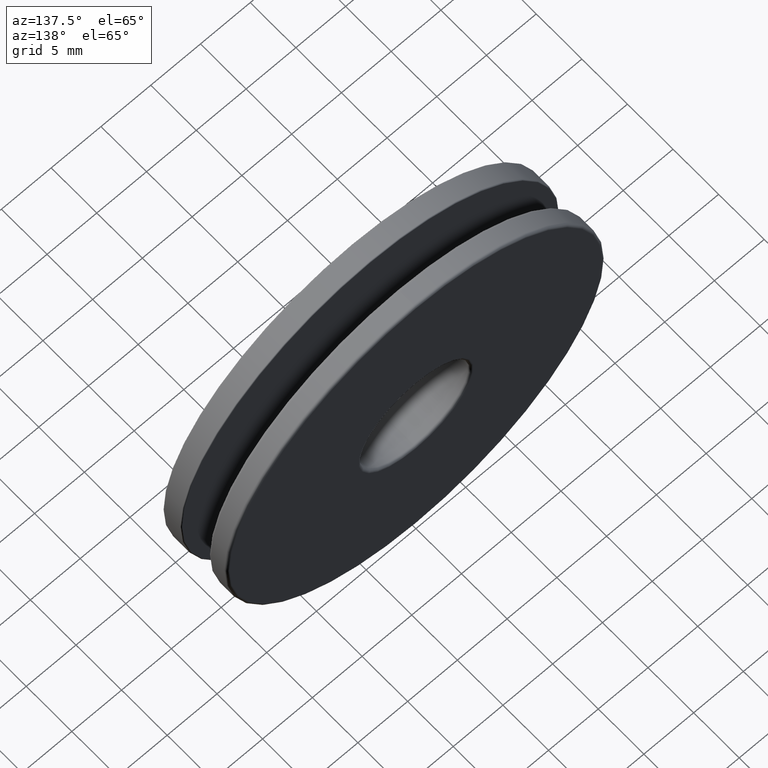
[diagram: clean part render]
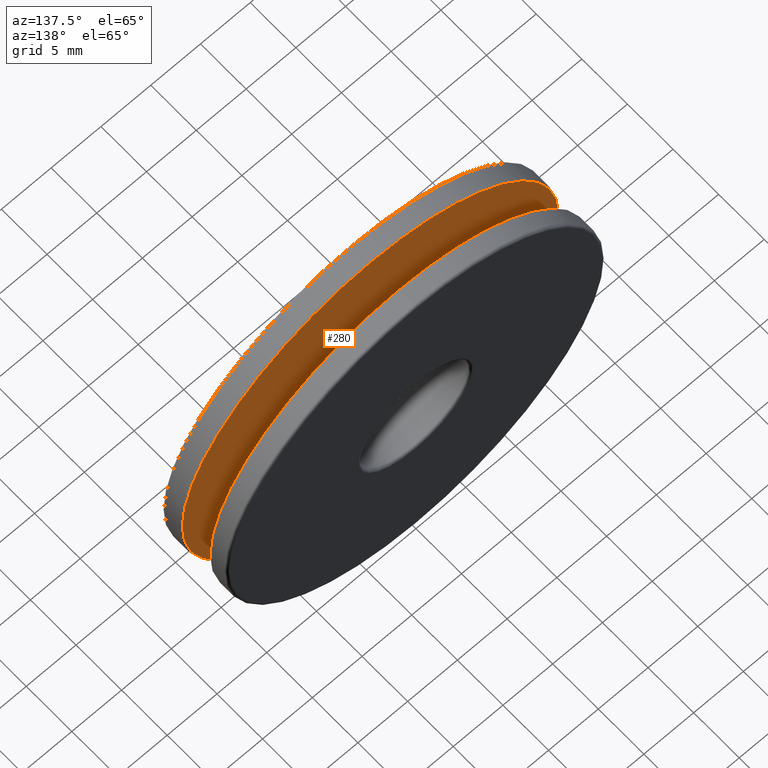
[diagram: same view with one face highlighted and labeled with its STEP entity id]
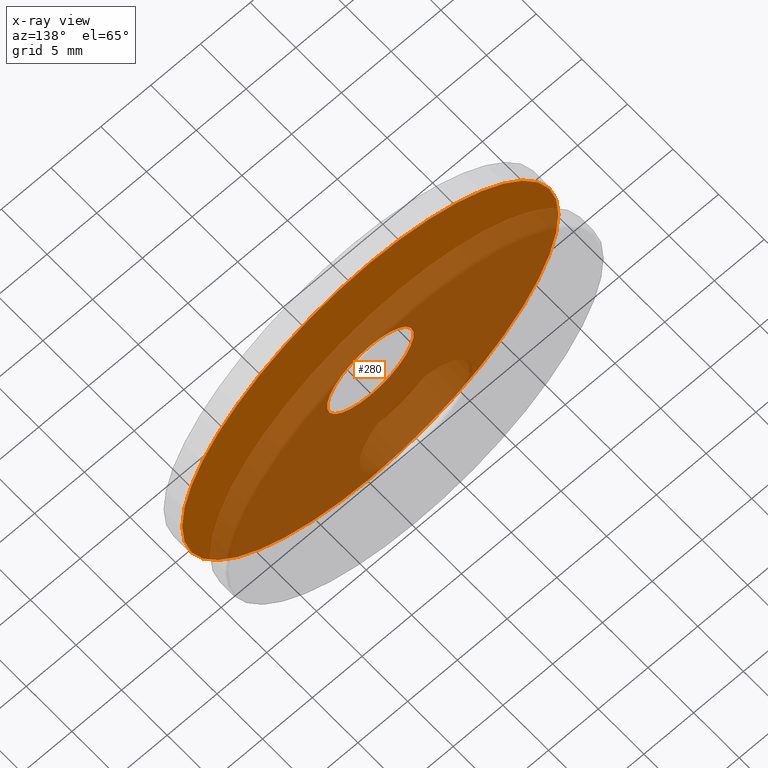
[diagram: x-ray of the same camera — body ghosted, the highlighted face saturated]
A machine part, auxiliary view. The second image highlights one B-rep face of the part: STEP entity #280.
The next image is the same camera in x-ray: the body ghosted, the highlighted face saturated — about 67% of this face is hidden behind the body in this view.
In plain terms, the highlighted planar face has unit normal (0, 1, 0).
Its self-contained STEP definition (entity closure, byte-faithful):
#14 = DIRECTION ( 'NONE',  ( -0.000000000000000000, -1.000000000000000000, -0.000000000000000000 ) ) ;
#51 = EDGE_LOOP ( 'NONE', ( #220 ) ) ;
#61 = CARTESIAN_POINT ( 'NONE',  ( 0.000000000000000000, 1.999999999999999112, 0.000000000000000000 ) ) ;
#67 = DIRECTION ( 'NONE',  ( 0.000000000000000000, 0.000000000000000000, 1.000000000000000000 ) ) ;
#87 = VERTEX_POINT ( 'NONE', #478 ) ;
#98 = EDGE_LOOP ( 'NONE', ( #230 ) ) ;
#123 = DIRECTION ( 'NONE',  ( 0.000000000000000000, 1.000000000000000000, 0.000000000000000000 ) ) ;
#162 = CIRCLE ( 'NONE', #166, 4.350000000000000533 ) ;
#166 = AXIS2_PLACEMENT_3D ( 'NONE', #61, #14, #67 ) ;
#199 = AXIS2_PLACEMENT_3D ( 'NONE', #625, #687, #283 ) ;
#213 = EDGE_CURVE ( 'NONE', #87, #87, #246, .T. ) ;
#220 = ORIENTED_EDGE ( 'NONE', *, *, #213, .T. ) ;
#229 = VERTEX_POINT ( 'NONE', #651 ) ;
#230 = ORIENTED_EDGE ( 'NONE', *, *, #235, .T. ) ;
#235 = EDGE_CURVE ( 'NONE', #229, #229, #162, .T. ) ;
#246 = CIRCLE ( 'NONE', #383, 18.89999999999999858 ) ;
#280 = ADVANCED_FACE ( 'NONE', ( #701, #309 ), #623, .T. ) ;
#283 = DIRECTION ( 'NONE',  ( 0.000000000000000000, -0.000000000000000000, 1.000000000000000000 ) ) ;
#309 = FACE_BOUND ( 'NONE', #98, .T. ) ;
#383 = AXIS2_PLACEMENT_3D ( 'NONE', #464, #123, #405 ) ;
#405 = DIRECTION ( 'NONE',  ( 0.000000000000000000, 0.000000000000000000, 1.000000000000000000 ) ) ;
#464 = CARTESIAN_POINT ( 'NONE',  ( 0.000000000000000000, 1.999999999999999112, 0.000000000000000000 ) ) ;
#478 = CARTESIAN_POINT ( 'NONE',  ( 0.000000000000000000, 1.999999999999999112, 18.89999999999999858 ) ) ;
#623 = PLANE ( 'NONE',  #199 ) ;
#625 = CARTESIAN_POINT ( 'NONE',  ( 19.00000000000000000, 1.999999999999999112, 0.000000000000000000 ) ) ;
#651 = CARTESIAN_POINT ( 'NONE',  ( 0.000000000000000000, 1.999999999999999112, 4.350000000000000533 ) ) ;
#687 = DIRECTION ( 'NONE',  ( 0.000000000000000000, 1.000000000000000000, 0.000000000000000000 ) ) ;
#701 = FACE_OUTER_BOUND ( 'NONE', #51, .T. ) ;